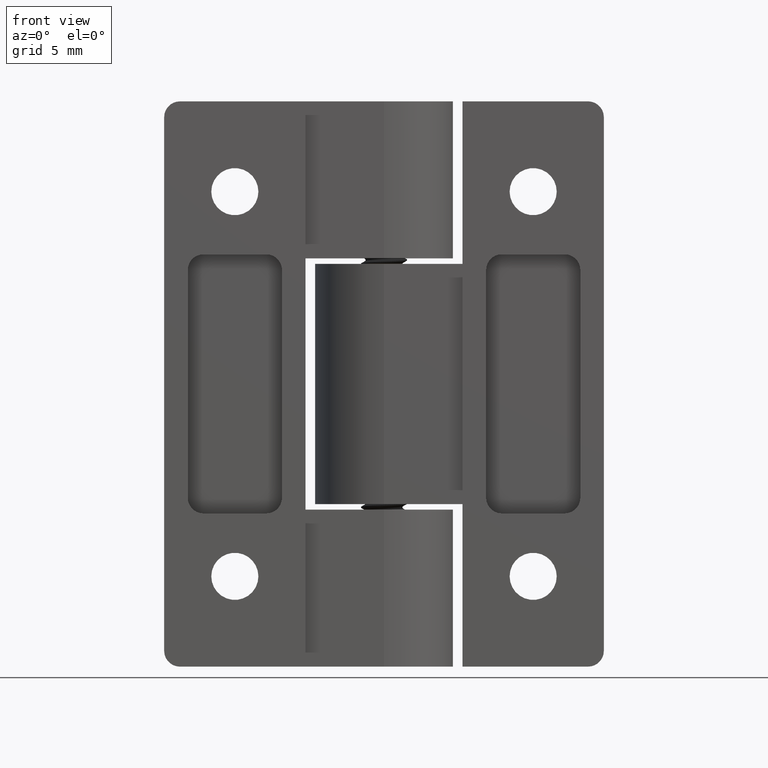
[diagram: clean part render]
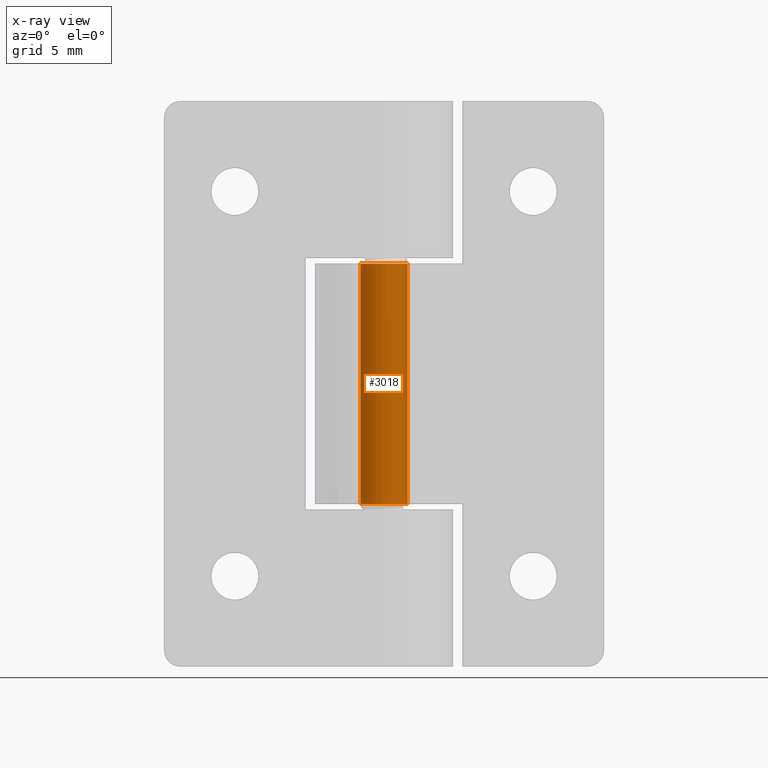
[diagram: x-ray — body ghosted, one internal face saturated and labeled with its STEP entity id]
A machine part, front view, then the same camera in x-ray: the body is ghosted and one INTERNAL B-rep face — a face not visible from any outside direction — is saturated and labeled: STEP entity #3018.
In plain terms, the highlighted cylindrical surface (bore or boss wall) has radius 1.5 mm, axis along (-0, 0, -1).
Its self-contained STEP definition (entity closure, byte-faithful):
#338=FACE_BOUND('',#661,.T.);
#514=FACE_OUTER_BOUND('',#660,.T.);
#660=EDGE_LOOP('',(#2842));
#661=EDGE_LOOP('',(#2843));
#1036=CIRCLE('',#3166,1.5);
#1039=CIRCLE('',#3170,1.5);
#1424=VERTEX_POINT('',#33484);
#1429=VERTEX_POINT('',#33496);
#1885=EDGE_CURVE('',#1424,#1424,#1036,.T.);
#1891=EDGE_CURVE('',#1429,#1429,#1039,.T.);
#2842=ORIENTED_EDGE('',*,*,#1885,.T.);
#2843=ORIENTED_EDGE('',*,*,#1891,.T.);
#2912=CYLINDRICAL_SURFACE('',#3202,1.5);
#3018=ADVANCED_FACE('',(#514,#338),#2912,.F.);
#3166=AXIS2_PLACEMENT_3D('',#33485,#3620,#3621);
#3170=AXIS2_PLACEMENT_3D('',#33497,#3631,#3632);
#3202=AXIS2_PLACEMENT_3D('',#33569,#3713,#3714);
#3620=DIRECTION('center_axis',(0.,1.,0.));
#3621=DIRECTION('ref_axis',(1.,0.,0.));
#3631=DIRECTION('center_axis',(0.,-1.,0.));
#3632=DIRECTION('ref_axis',(1.,0.,0.));
#3713=DIRECTION('center_axis',(0.,-1.,0.));
#3714=DIRECTION('ref_axis',(1.,0.,0.));
#33484=CARTESIAN_POINT('',(43.4262510638286,7.65,5.1));
#33485=CARTESIAN_POINT('Origin',(44.9262510638286,7.65,5.1));
#33496=CARTESIAN_POINT('',(43.4262510638286,-7.65,5.1));
#33497=CARTESIAN_POINT('Origin',(44.9262510638286,-7.65,5.1));
#33569=CARTESIAN_POINT('Origin',(44.9262510638286,0.,5.1));